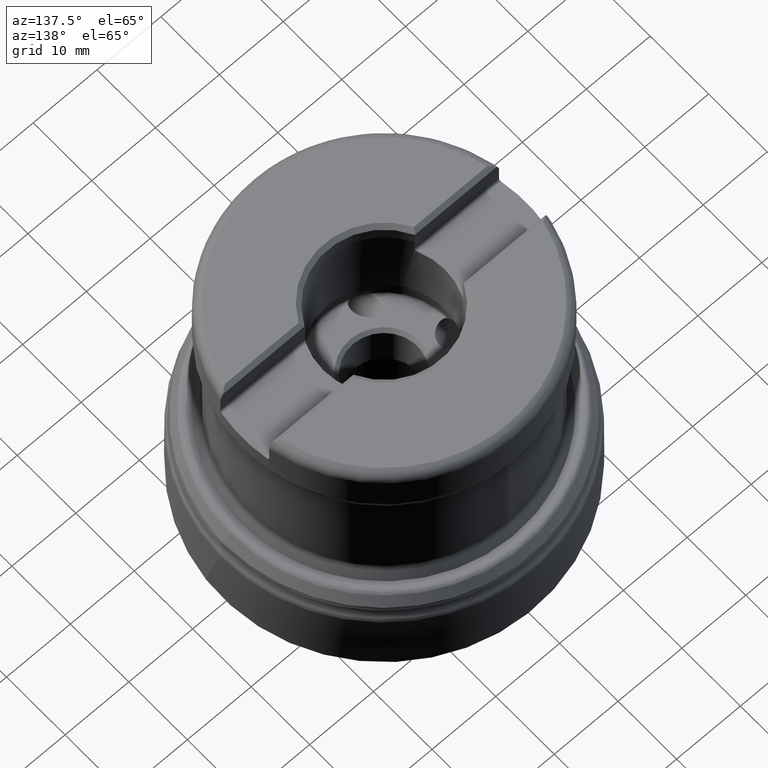
[diagram: clean part render]
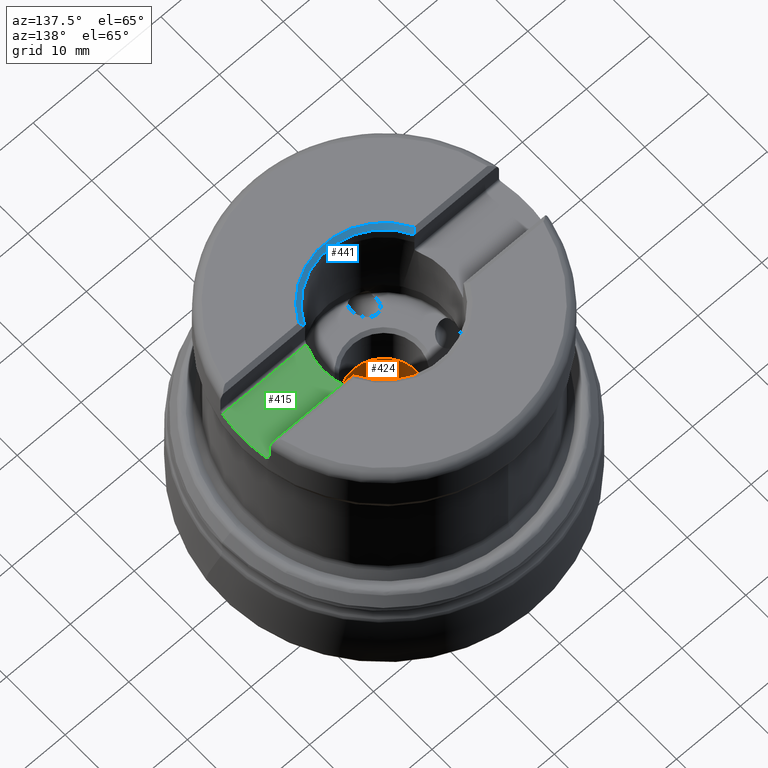
[diagram: same view with three faces highlighted in distinct colors, each labeled with its STEP entity id]
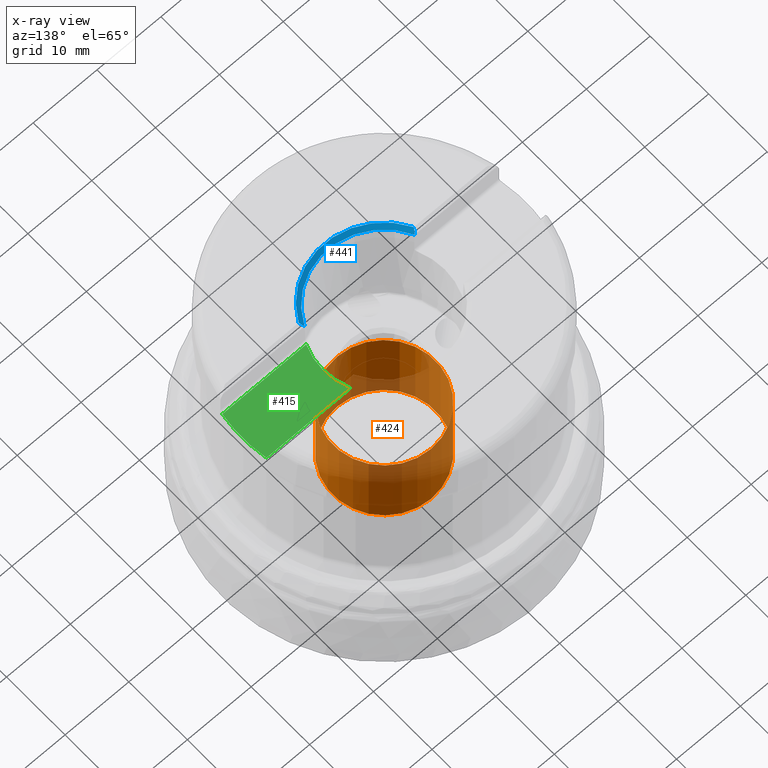
[diagram: x-ray of the same camera — body ghosted, the three highlighted faces saturated]
A machine part, auxiliary view with three faces highlighted in distinct colors.
The next image is the same camera in x-ray (body ghosted, the three faces saturated) — at least one of them is partly hidden behind the body in this view.
Their STEP definitions:

[orange] entity #424 — the highlighted cylindrical surface (bore or boss wall) has radius 8 mm, axis along (0, -0, -1).
#197=CYLINDRICAL_SURFACE('',#1519,8.);
#287=FACE_BOUND('',#578,.T.);
#288=FACE_BOUND('',#579,.T.);
#424=ADVANCED_FACE('',(#287,#288),#197,.F.);
#578=EDGE_LOOP('',(#834));
#579=EDGE_LOOP('',(#835));
#834=ORIENTED_EDGE('',*,*,#1148,.T.);
#835=ORIENTED_EDGE('',*,*,#1230,.T.);
#1023=VERTEX_POINT('',#2411);
#1087=VERTEX_POINT('',#3098);
#1148=EDGE_CURVE('',#1023,#1023,#1297,.T.);
#1230=EDGE_CURVE('',#1087,#1087,#1326,.T.);
#1297=CIRCLE('',#1462,8.);
#1326=CIRCLE('',#1518,8.);
#1462=AXIS2_PLACEMENT_3D('',#2410,#1627,#1628);
#1518=AXIS2_PLACEMENT_3D('',#3097,#1763,#1764);
#1519=AXIS2_PLACEMENT_3D('',#3099,#1765,#1766);
#1627=DIRECTION('',(0.,-1.17145536458252E-15,-1.));
#1628=DIRECTION('',(0.,1.,-1.19262238973405E-15));
#1763=DIRECTION('',(0.,1.17145536458252E-15,1.));
#1764=DIRECTION('',(0.,-1.,1.3010426069826E-15));
#1765=DIRECTION('',(0.,-1.17145536458252E-15,-1.));
#1766=DIRECTION('',(0.,1.,-8.67361737988403E-16));
#2410=CARTESIAN_POINT('',(0.,3.98294823958058E-15,3.4));
#2411=CARTESIAN_POINT('',(0.,8.00000000000001,3.39999999999999));
#3097=CARTESIAN_POINT('',(0.,1.9973313966132E-14,17.05));
#3098=CARTESIAN_POINT('',(0.,-7.99999999999998,17.05));
#3099=CARTESIAN_POINT('',(0.,5.23054820286097E-14,44.65));

[blue] entity #441 — the highlighted conical surface has half-angle 45 deg.
#172=CONICAL_SURFACE('',#1550,10.2123019237294,45.);
#441=ADVANCED_FACE('',(#534),#172,.F.);
#534=FACE_OUTER_BOUND('',#606,.T.);
#606=EDGE_LOOP('',(#900,#901,#902,#903,#904,#905));
#900=ORIENTED_EDGE('',*,*,#1218,.F.);
#901=ORIENTED_EDGE('',*,*,#1204,.F.);
#902=ORIENTED_EDGE('',*,*,#1196,.F.);
#903=ORIENTED_EDGE('',*,*,#1255,.F.);
#904=ORIENTED_EDGE('',*,*,#1174,.F.);
#905=ORIENTED_EDGE('',*,*,#1254,.F.);
#1046=VERTEX_POINT('',#2583);
#1047=VERTEX_POINT('',#2585);
#1066=VERTEX_POINT('',#2933);
#1067=VERTEX_POINT('',#2938);
#1073=VERTEX_POINT('',#2966);
#1082=VERTEX_POINT('',#3042);
#1174=EDGE_CURVE('',#1046,#1047,#1306,.T.);
#1196=EDGE_CURVE('',#1066,#1067,#1410,.T.);
#1204=EDGE_CURVE('',#1067,#1073,#1319,.T.);
#1218=EDGE_CURVE('',#1073,#1082,#1417,.T.);
#1254=EDGE_CURVE('',#1082,#1046,#1429,.T.);
#1255=EDGE_CURVE('',#1047,#1066,#1430,.T.);
#1306=CIRCLE('',#1475,10.2123019237294);
#1319=CIRCLE('',#1498,9.59059131072197);
#1410=B_SPLINE_CURVE_WITH_KNOTS('',3,(#2934,#2935,#2936,#2937),
 .UNSPECIFIED.,.F.,.F.,(4,4),(0.,1.),.UNSPECIFIED.);
#1417=B_SPLINE_CURVE_WITH_KNOTS('',3,(#3038,#3039,#3040,#3041),
 .UNSPECIFIED.,.F.,.F.,(4,4),(0.,1.),.UNSPECIFIED.);
#1429=B_SPLINE_CURVE_WITH_KNOTS('',3,(#3222,#3223,#3224,#3225),
 .UNSPECIFIED.,.F.,.F.,(4,4),(0.,1.),.UNSPECIFIED.);
#1430=B_SPLINE_CURVE_WITH_KNOTS('',3,(#3227,#3228,#3229,#3230),
 .UNSPECIFIED.,.F.,.F.,(4,4),(0.,1.),.UNSPECIFIED.);
#1475=AXIS2_PLACEMENT_3D('',#2584,#1658,#1659);
#1498=AXIS2_PLACEMENT_3D('',#2965,#1713,#1714);
#1550=AXIS2_PLACEMENT_3D('',#3232,#1827,#1828);
#1658=DIRECTION('',(0.,-1.17145536458252E-15,-1.));
#1659=DIRECTION('',(0.,1.,-1.35892846798506E-15));
#1713=DIRECTION('',(0.,1.17145536458252E-15,1.));
#1714=DIRECTION('',(0.,1.,-1.44702108120274E-15));
#1827=DIRECTION('',(0.,1.17145536458252E-15,1.));
#1828=DIRECTION('',(0.,-1.,1.19516218222713E-15));
#2583=CARTESIAN_POINT('',(9.02720807234477,-4.77499999999994,44.45));
#2584=CARTESIAN_POINT('',(0.,5.20711909556932E-14,44.45));
#2585=CARTESIAN_POINT('',(-9.02720807234477,-4.77499999999994,44.45));
#2933=CARTESIAN_POINT('',(-8.65827484392424,-4.17499999999995,43.85));
#2934=CARTESIAN_POINT('',(-8.65827484392424,-4.17499999999995,43.85));
#2935=CARTESIAN_POINT('',(-8.65023939768917,-4.17499999999995,43.8427620769147));
#2936=CARTESIAN_POINT('',(-8.64220300614681,-4.17499999999995,43.8355252031571));
#2937=CARTESIAN_POINT('',(-8.63416566260433,-4.17499999999995,43.8282893869926));
#2938=CARTESIAN_POINT('',(-8.63416566260433,-4.17499999999995,43.8282893869926));
#2965=CARTESIAN_POINT('',(0.,5.13428847228678E-14,43.8282893869926));
#2966=CARTESIAN_POINT('',(8.63416566260433,-4.17499999999995,43.8282893869926));
#3038=CARTESIAN_POINT('',(8.63416566260433,-4.17499999999995,43.8282893869926));
#3039=CARTESIAN_POINT('',(8.64220300614681,-4.17499999999995,43.8355252031571));
#3040=CARTESIAN_POINT('',(8.65023939768916,-4.17499999999995,43.8427620769147));
#3041=CARTESIAN_POINT('',(8.65827484392424,-4.17499999999995,43.85));
#3042=CARTESIAN_POINT('',(8.65827484392424,-4.17499999999995,43.85));
#3222=CARTESIAN_POINT('',(8.65827484392424,-4.17499999999995,43.85));
#3223=CARTESIAN_POINT('',(8.78344488494313,-4.3743188225647,44.0493188225648));
#3224=CARTESIAN_POINT('',(8.90635406849856,-4.57435375037115,44.2493537503712));
#3225=CARTESIAN_POINT('',(9.02720807234477,-4.77499999999994,44.45));
#3227=CARTESIAN_POINT('',(-9.02720807234477,-4.77499999999994,44.45));
#3228=CARTESIAN_POINT('',(-8.90635406849856,-4.57435375037115,44.2493537503712));
#3229=CARTESIAN_POINT('',(-8.78344488494313,-4.3743188225647,44.0493188225648));
#3230=CARTESIAN_POINT('',(-8.65827484392424,-4.17499999999995,43.85));
#3232=CARTESIAN_POINT('',(0.,5.20711909556932E-14,44.45));

[green] entity #415 — the highlighted planar face has unit normal (0, 0, 1).
#179=PLANE('',#1507);
#224=LINE('',#2993,#251);
#225=LINE('',#2997,#252);
#251=VECTOR('',#1729,1.);
#252=VECTOR('',#1732,1.);
#415=ADVANCED_FACE('',(#520),#179,.T.);
#520=FACE_OUTER_BOUND('',#568,.T.);
#568=EDGE_LOOP('',(#784,#785,#786,#787));
#784=ORIENTED_EDGE('',*,*,#1212,.T.);
#785=ORIENTED_EDGE('',*,*,#1213,.T.);
#786=ORIENTED_EDGE('',*,*,#1214,.T.);
#787=ORIENTED_EDGE('',*,*,#1162,.F.);
#1027=VERTEX_POINT('',#2434);
#1037=VERTEX_POINT('',#2499);
#1079=VERTEX_POINT('',#2994);
#1080=VERTEX_POINT('',#2996);
#1162=EDGE_CURVE('',#1037,#1027,#1303,.T.);
#1212=EDGE_CURVE('',#1037,#1079,#224,.T.);
#1213=EDGE_CURVE('',#1079,#1080,#1323,.T.);
#1214=EDGE_CURVE('',#1080,#1027,#225,.T.);
#1303=CIRCLE('',#1469,22.225);
#1323=CIRCLE('',#1506,9.525);
#1469=AXIS2_PLACEMENT_3D('',#2500,#1645,#1646);
#1506=AXIS2_PLACEMENT_3D('',#2995,#1730,#1731);
#1507=AXIS2_PLACEMENT_3D('',#2998,#1733,#1734);
#1645=DIRECTION('',(0.,-1.17145536458252E-15,-1.));
#1646=DIRECTION('',(0.,-1.,1.24884479710366E-15));
#1729=DIRECTION('',(-1.,0.,0.));
#1730=DIRECTION('',(0.,-1.17145536458252E-15,-1.));
#1731=DIRECTION('',(0.,-1.,1.45698559662094E-15));
#1732=DIRECTION('',(1.,0.,0.));
#1733=DIRECTION('',(0.,1.17145536458252E-15,1.));
#1734=DIRECTION('',(0.,-1.,1.17267306976032E-15));
#2434=CARTESIAN_POINT('',(21.9020546981328,-3.77499999999995,39.7));
#2499=CARTESIAN_POINT('',(21.9020546981328,3.77500000000005,39.7));
#2500=CARTESIAN_POINT('',(0.,4.65067779739262E-14,39.7));
#2993=CARTESIAN_POINT('',(27.,3.77500000000005,39.7));
#2994=CARTESIAN_POINT('',(8.74499857061166,3.77500000000005,39.7));
#2995=CARTESIAN_POINT('',(0.,4.65067779739262E-14,39.7));
#2996=CARTESIAN_POINT('',(8.74499857061166,-3.77499999999995,39.7));
#2997=CARTESIAN_POINT('',(27.,-3.77499999999995,39.7));
#2998=CARTESIAN_POINT('',(27.,-4.17499999999995,39.7));